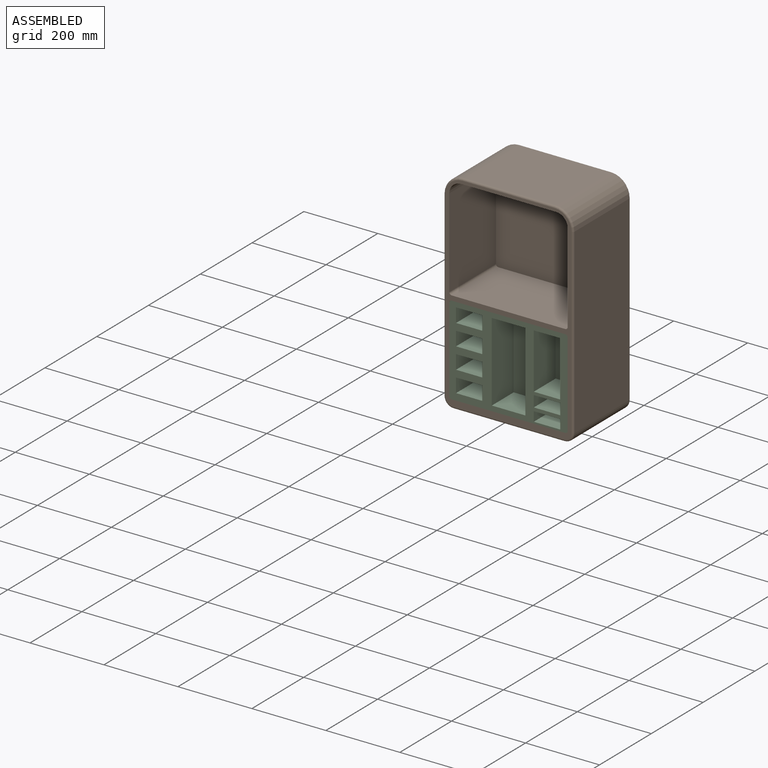
[diagram: assembled view]
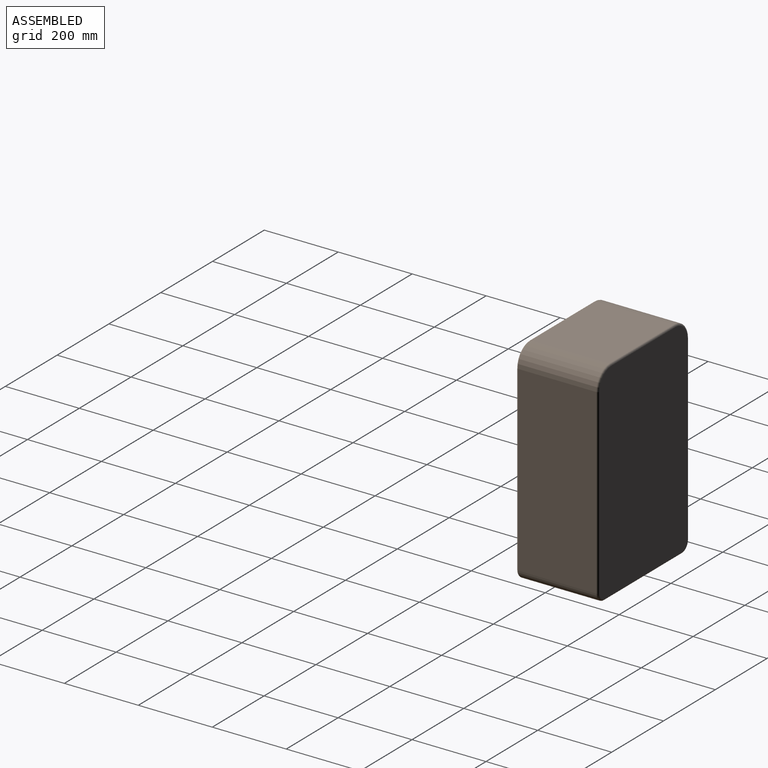
[diagram: assembled view, second angle]
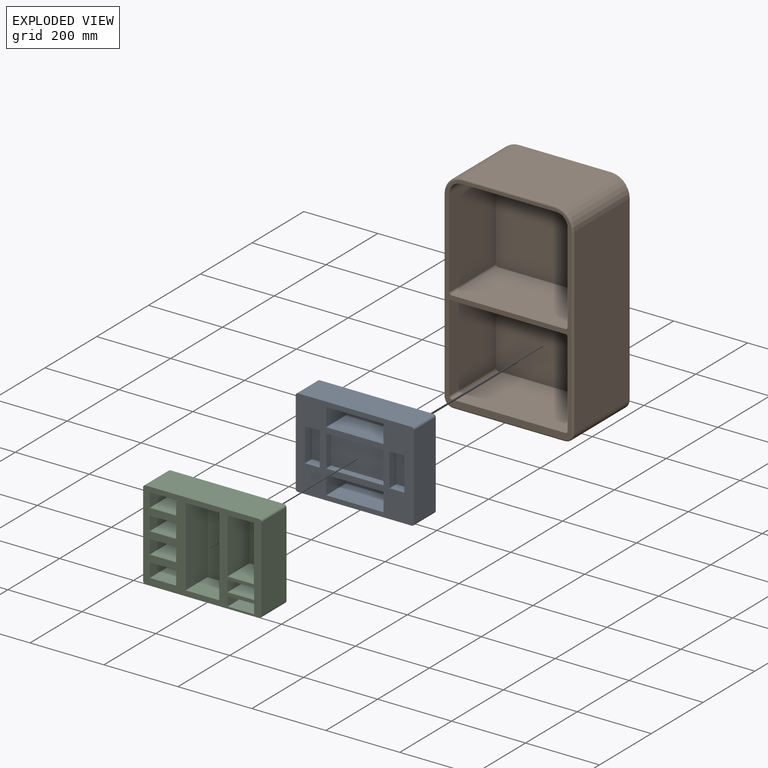
[diagram: exploded view]
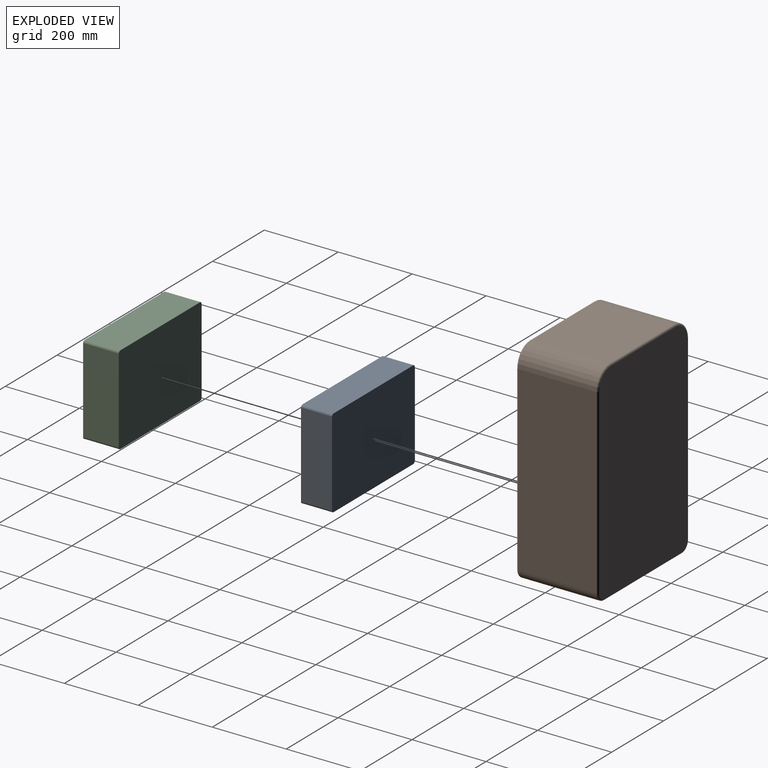
[diagram: exploded view, second angle]
ASSEMBLY  parts=3 mates=2
PART A: 35 faces, bbox 320x83.8x241.3 mm
  f0: plane 320.04x241.3mm, normal (0,-1,0), area 41468.8mm2, adj f1,f2,f3,f4,f5,f6,f7,f8
  f1: plane 228.6x83.82mm, normal (-1,0,0), area 19161.3mm2, adj f0,f2,f8,f9
  f2: cylinder r=6.35mm len=83.82mm, axis (0,1,0), area 836.1mm2, adj f0,f1,f3,f9
  f3: plane 307.34x83.82mm, normal (0,0,-1), area 25761.2mm2, adj f0,f2,f4,f9
  f4: cylinder r=6.35mm len=83.82mm, axis (0,1,0), area 836.1mm2, adj f0,f3,f5,f9
  f5: plane 228.6x83.82mm, normal (1,0,0), area 19161.3mm2, adj f0,f4,f6,f9
  f6: cylinder r=6.35mm len=83.82mm, axis (0,1,0), area 836.1mm2, adj f0,f5,f7,f9
  f7: plane 307.34x83.82mm, normal (0,0,1), area 25761.2mm2, adj f0,f6,f8,f9
  f8: cylinder r=6.35mm len=83.82mm, axis (0,1,0), area 836.1mm2, adj f0,f1,f7,f9
  f9: plane 320.04x241.3mm, normal (0,1,0), area 77191mm2, adj f1,f2,f3,f4,f5,f6,f7,f8
  f10: plane 90.17x25.91mm, normal (-1,0,0), area 2336.1mm2, adj f0,f11,f13,f14
  f11: plane 39.86x25.91mm, normal (0,0,-1), area 1032.7mm2, adj f0,f10,f12,f14
  f12: plane 90.17x25.91mm, normal (1,0,0), area 2336.1mm2, adj f0,f11,f13,f14
  f13: plane 39.86x25.91mm, normal (0,0,1), area 1032.7mm2, adj f0,f10,f12,f14
  f14: plane 90.17x39.86mm, normal (0,-1,0), area 3594.2mm2, adj f10,f11,f12,f13
  f15: plane 39.86x25.91mm, normal (0,0,-1), area 1032.7mm2, adj f0,f16,f18,f19
  f16: plane 90.17x25.91mm, normal (1,0,0), area 2336.1mm2, adj f0,f15,f17,f19
  f17: plane 39.86x25.91mm, normal (0,0,1), area 1032.7mm2, adj f0,f16,f18,f19
  f18: plane 90.17x25.91mm, normal (-1,0,0), area 2336.1mm2, adj f0,f15,f17,f19
  f19: plane 90.17x39.86mm, normal (0,-1,0), area 3594.2mm2, adj f15,f16,f17,f18
  f20: plane 85.09x19.05mm, normal (-1,0,0), area 1621mm2, adj f0,f21,f23,f24
  f21: plane 154.94x19.05mm, normal (0,0,-1), area 2951.6mm2, adj f0,f20,f22,f24
  f22: plane 85.09x19.05mm, normal (1,0,0), area 1621mm2, adj f0,f21,f23,f24
  f23: plane 154.94x19.05mm, normal (0,0,1), area 2951.6mm2, adj f0,f20,f22,f24
  f24: plane 154.94x85.09mm, normal (0,-1,0), area 13183.8mm2, adj f20,f21,f22,f23
  f25: plane 154.94x76.2mm, normal (0,0,-1), area 11806.4mm2, adj f0,f26,f28,f29
  f26: plane 76.2x49.73mm, normal (1,0,0), area 3789.3mm2, adj f0,f25,f27,f29
  f27: plane 154.94x76.2mm, normal (0,0,1), area 11806.4mm2, adj f0,f26,f28,f29
  f28: plane 76.2x49.73mm, normal (-1,0,0), area 3789.3mm2, adj f0,f25,f27,f29
  f29: plane 154.94x49.73mm, normal (0,-1,0), area 7705mm2, adj f25,f26,f27,f28
  f30: plane 76.2x49.34mm, normal (1,0,0), area 3759.8mm2, adj f0,f31,f33,f34
  f31: plane 154.94x76.2mm, normal (0,0,1), area 11806.4mm2, adj f0,f30,f32,f34
  f32: plane 76.2x49.34mm, normal (-1,0,0), area 3759.8mm2, adj f0,f31,f33,f34
  f33: plane 154.94x76.2mm, normal (0,0,-1), area 11806.4mm2, adj f0,f30,f32,f34
  f34: plane 154.94x49.34mm, normal (0,-1,0), area 7645mm2, adj f30,f31,f32,f33
PART B: 44 faces, bbox 358.9x221x575.2 mm
  f0: plane 558.8x340.36mm, normal (0,-1,0), area 22958.5mm2, adj f10,f11,f12,f13,f14,f15,f16,f17
  f1: plane 492.76x210.82mm, normal (-1,0,0), area 103883.7mm2, adj f7,f8,f15,f24
  f2: plane 299.72x210.82mm, normal (0,0,-1), area 63187mm2, adj f8,f9,f16,f23
  f3: plane 492.76x210.82mm, normal (1,0,0), area 103883.7mm2, adj f6,f9,f12,f19
  f4: plane 248.92x210.82mm, normal (0,0,1), area 52477.3mm2, adj f6,f7,f11,f20
  f5: plane 558.8x340.36mm, normal (0,1,0), area 189118.8mm2, adj f18,f19,f20,f21,f22,f23,f24,f25
  f6: cylinder r=50.8mm len=210.82mm, axis (0,1,0), area 16822.7mm2, adj f3,f4,f10,f18
  f7: cylinder r=50.8mm len=210.82mm, axis (0,-1,0), area 16822.7mm2, adj f1,f4,f13,f22
  f8: cylinder r=25.4mm len=210.82mm, axis (0,1,0), area 8411.3mm2, adj f1,f2,f17,f25
  f9: cylinder r=25.4mm len=210.82mm, axis (0,-1,0), area 8411.3mm2, adj f2,f3,f14,f21
  f10: torus R=45.72mm, axis (0,-1,0), area 613.6mm2, adj f0,f6,f11,f12
  f11: cylinder r=5.08mm len=248.92mm, axis (-1,0,0), area 1986.3mm2, adj f0,f4,f10,f13
  f12: cylinder r=5.08mm len=492.76mm, axis (0,0,1), area 3932.1mm2, adj f0,f3,f10,f14
  f13: torus R=45.72mm, axis (0,-1,0), area 613.6mm2, adj f0,f7,f11,f15
  f14: torus R=20.32mm, axis (0,-1,0), area 295.2mm2, adj f0,f9,f12,f16
  f15: cylinder r=5.08mm len=492.76mm, axis (0,0,-1), area 3932.1mm2, adj f0,f1,f13,f17
  f16: cylinder r=5.08mm len=299.72mm, axis (1,0,0), area 2391.7mm2, adj f0,f2,f14,f17
  f17: torus R=20.32mm, axis (0,-1,0), area 295.2mm2, adj f0,f8,f15,f16
  f18: torus R=45.72mm, axis (0,-1,0), area 613.6mm2, adj f5,f6,f19,f20
  f19: cylinder r=5.08mm len=492.76mm, axis (0,0,-1), area 3932.1mm2, adj f3,f5,f18,f21
  f20: cylinder r=5.08mm len=248.92mm, axis (1,0,0), area 1986.3mm2, adj f4,f5,f18,f22
  f21: torus R=20.32mm, axis (0,-1,0), area 295.2mm2, adj f5,f9,f19,f23
  f22: torus R=45.72mm, axis (0,-1,0), area 613.6mm2, adj f5,f7,f20,f24
  f23: cylinder r=5.08mm len=299.72mm, axis (-1,0,0), area 2391.7mm2, adj f2,f5,f21,f25
  f24: cylinder r=5.08mm len=492.76mm, axis (0,0,1), area 3932.1mm2, adj f1,f5,f22,f25
  f25: torus R=20.32mm, axis (0,-1,0), area 295.2mm2, adj f5,f8,f23,f24
  f26: plane 256.54x180.34mm, normal (0,0,-1), area 46264.4mm2, adj f0,f27,f33,f34
  f27: cylinder r=31.75mm len=180.34mm, axis (0,-1,0), area 8994.1mm2, adj f0,f26,f28,f34
  f28: plane 241.3x180.34mm, normal (1,0,0), area 43516mm2, adj f0,f27,f29,f34
  f29: cylinder r=6.35mm len=180.34mm, axis (0,-1,0), area 1798.8mm2, adj f0,f28,f30,f34
  f30: plane 307.34x180.34mm, normal (0,0,1), area 55425.7mm2, adj f0,f29,f31,f34
  f31: cylinder r=6.35mm len=180.34mm, axis (0,-1,0), area 1798.8mm2, adj f0,f30,f32,f34
  f32: plane 241.3x180.34mm, normal (-1,0,0), area 43516mm2, adj f0,f31,f33,f34
  f33: cylinder r=31.75mm len=180.34mm, axis (0,-1,0), area 8994.1mm2, adj f0,f26,f32,f34
  f34: plane 320.04x279.4mm, normal (0,-1,0), area 88969.2mm2, adj f26,f27,f28,f29,f30,f31,f32,f33
  f35: plane 307.34x180.34mm, normal (0,0,-1), area 55425.7mm2, adj f0,f36,f42,f43
  f36: cylinder r=6.35mm len=180.34mm, axis (0,-1,0), area 1798.8mm2, adj f0,f35,f37,f43
  f37: plane 228.6x180.34mm, normal (1,0,0), area 41225.7mm2, adj f0,f36,f38,f43
  f38: cylinder r=6.35mm len=180.34mm, axis (0,-1,0), area 1798.8mm2, adj f0,f37,f39,f43
  f39: plane 307.34x180.34mm, normal (0,0,1), area 55425.7mm2, adj f0,f38,f40,f43
  f40: cylinder r=6.35mm len=180.34mm, axis (0,-1,0), area 1798.8mm2, adj f0,f39,f41,f43
  f41: plane 228.6x180.34mm, normal (-1,0,0), area 41225.7mm2, adj f0,f40,f42,f43
  f42: cylinder r=6.35mm len=180.34mm, axis (0,-1,0), area 1798.8mm2, adj f0,f35,f41,f43
  f43: plane 320.04x241.3mm, normal (0,-1,0), area 77191mm2, adj f35,f36,f37,f38,f39,f40,f41,f42
PART C: 50 faces, bbox 320x96.5x241.3 mm
  f0: plane 320.04x241.3mm, normal (0,-1,0), area 32210.6mm2, adj f1,f2,f3,f4,f5,f6,f7,f8
  f1: plane 228.6x96.52mm, normal (-1,0,0), area 22064.5mm2, adj f0,f2,f8,f9
  f2: cylinder r=6.35mm len=96.52mm, axis (0,1,0), area 962.7mm2, adj f0,f1,f3,f9
  f3: plane 307.34x96.52mm, normal (0,0,-1), area 29664.5mm2, adj f0,f2,f4,f9
  f4: cylinder r=6.35mm len=96.52mm, axis (0,1,0), area 962.7mm2, adj f0,f3,f5,f9
  f5: plane 228.6x96.52mm, normal (1,0,0), area 22064.5mm2, adj f0,f4,f6,f9
  f6: cylinder r=6.35mm len=96.52mm, axis (0,1,0), area 962.7mm2, adj f0,f5,f7,f9
  f7: plane 307.34x96.52mm, normal (0,0,1), area 29664.5mm2, adj f0,f6,f8,f9
  f8: cylinder r=6.35mm len=96.52mm, axis (0,1,0), area 962.7mm2, adj f0,f1,f7,f9
  f9: plane 320.04x241.3mm, normal (0,1,0), area 77191mm2, adj f1,f2,f3,f4,f5,f6,f7,f8
  f10: plane 214x84.46mm, normal (-1,0,0), area 18073.4mm2, adj f0,f11,f13,f14
  f11: plane 91.01x84.46mm, normal (0,0,-1), area 7686.1mm2, adj f0,f10,f12,f14
  f12: plane 214x84.46mm, normal (1,0,0), area 18073.4mm2, adj f0,f11,f13,f14
  f13: plane 91.01x84.46mm, normal (0,0,1), area 7686.1mm2, adj f0,f10,f12,f14
  f14: plane 214x91.01mm, normal (0,-1,0), area 19475.8mm2, adj f10,f11,f12,f13
  f15: plane 84.46x38.1mm, normal (-1,0,0), area 3217.7mm2, adj f0,f16,f18,f19
  f16: plane 84.46x71.12mm, normal (0,0,-1), area 6006.4mm2, adj f0,f15,f17,f19
  f17: plane 84.46x38.1mm, normal (1,0,0), area 3217.7mm2, adj f0,f16,f18,f19
  f18: plane 84.46x71.12mm, normal (0,0,1), area 6006.4mm2, adj f0,f15,f17,f19
  f19: plane 71.12x38.1mm, normal (0,-1,0), area 2709.7mm2, adj f15,f16,f17,f18
  f20: plane 84.46x71.12mm, normal (0,0,1), area 6006.4mm2, adj f0,f21,f23,f24
  f21: plane 84.46x38.1mm, normal (-1,0,0), area 3217.7mm2, adj f0,f20,f22,f24
  f22: plane 84.46x71.12mm, normal (0,0,-1), area 6006.4mm2, adj f0,f21,f23,f24
  f23: plane 84.46x38.1mm, normal (1,0,0), area 3217.7mm2, adj f0,f20,f22,f24
  f24: plane 71.12x38.1mm, normal (0,-1,0), area 2709.7mm2, adj f20,f21,f22,f23
  f25: plane 84.46x71.12mm, normal (0,0,1), area 6006.4mm2, adj f0,f26,f28,f29
  f26: plane 84.46x38.1mm, normal (-1,0,0), area 3217.7mm2, adj f0,f25,f27,f29
  f27: plane 84.46x71.12mm, normal (0,0,-1), area 6006.4mm2, adj f0,f26,f28,f29
  f28: plane 84.46x38.1mm, normal (1,0,0), area 3217.7mm2, adj f0,f25,f27,f29
  f29: plane 71.12x38.1mm, normal (0,-1,0), area 2709.7mm2, adj f25,f26,f27,f28
  f30: plane 84.46x71.12mm, normal (0,0,1), area 6006.4mm2, adj f0,f31,f33,f34
  f31: plane 84.46x38.1mm, normal (-1,0,0), area 3217.7mm2, adj f0,f30,f32,f34
  f32: plane 84.46x71.12mm, normal (0,0,-1), area 6006.4mm2, adj f0,f31,f33,f34
  f33: plane 84.46x38.1mm, normal (1,0,0), area 3217.7mm2, adj f0,f30,f32,f34
  f34: plane 71.12x38.1mm, normal (0,-1,0), area 2709.7mm2, adj f30,f31,f32,f33
  f35: plane 84.46x71.12mm, normal (0,0,-1), area 6006.4mm2, adj f0,f36,f38,f39
  f36: plane 149.86x84.46mm, normal (1,0,0), area 12656.4mm2, adj f0,f35,f37,f39
  f37: plane 84.46x71.12mm, normal (0,0,1), area 6006.4mm2, adj f0,f36,f38,f39
  f38: plane 149.86x84.46mm, normal (-1,0,0), area 12656.4mm2, adj f0,f35,f37,f39
  f39: plane 149.86x71.12mm, normal (0,-1,0), area 10658mm2, adj f35,f36,f37,f38
  f40: plane 84.46x71.72mm, normal (0,0,-1), area 6057.3mm2, adj f0,f41,f43,f44
  f41: plane 84.46x30.2mm, normal (1,0,0), area 2550.8mm2, adj f0,f40,f42,f44
  f42: plane 84.46x71.72mm, normal (0,0,1), area 6057.3mm2, adj f0,f41,f43,f44
  f43: plane 84.46x30.2mm, normal (-1,0,0), area 2550.8mm2, adj f0,f40,f42,f44
  f44: plane 71.72x30.2mm, normal (0,-1,0), area 2166.3mm2, adj f40,f41,f42,f43
  f45: plane 84.46x71.72mm, normal (0,0,-1), area 6057.3mm2, adj f0,f46,f48,f49
  f46: plane 84.46x25.68mm, normal (1,0,0), area 2168.7mm2, adj f0,f45,f47,f49
  f47: plane 84.46x71.72mm, normal (0,0,1), area 6057.3mm2, adj f0,f46,f48,f49
  f48: plane 84.46x25.68mm, normal (-1,0,0), area 2168.7mm2, adj f0,f45,f47,f49
  f49: plane 71.72x25.68mm, normal (0,-1,0), area 1841.7mm2, adj f45,f46,f47,f48
PLACE A rot(axis=(0.06,0.06,1),0deg) t=(266.94,104.14,-133.48)mm
PLACE B rot(axis=(0.06,0.06,1),0deg) t=(251.7,-76.2,-155.73)mm
PLACE C rot(axis=(0.06,0.06,1),0deg) t=(266.94,20.32,-133.48)mm
MATE slider C.f9 <-> A.f0  axis (0,1,0) through (426.96,20.32,-12.83)mm
MATE slider A.f9 <-> B.f43  axis (0,1,0) through (426.96,104.14,-12.83)mm
